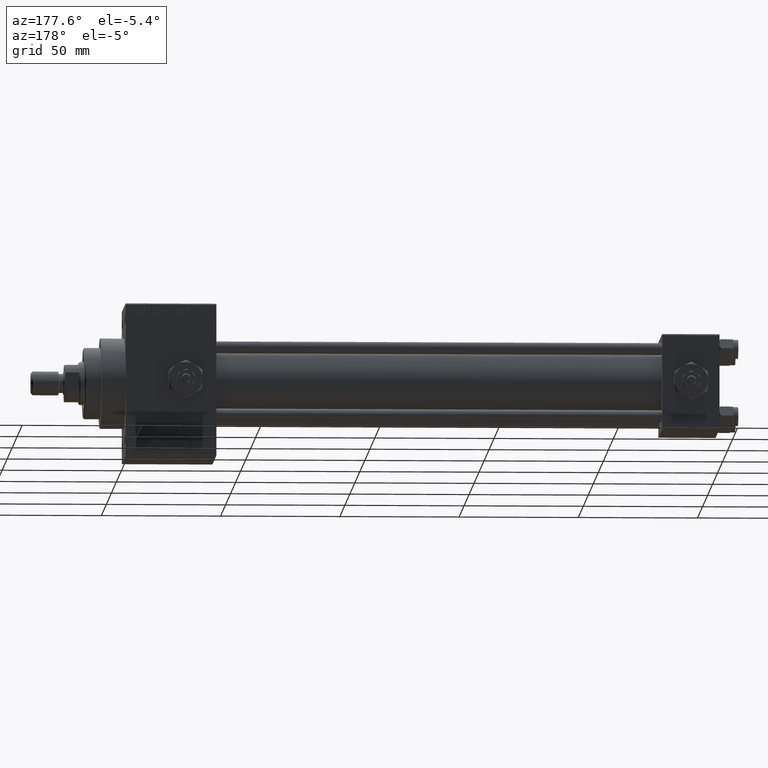
[diagram: clean part render]
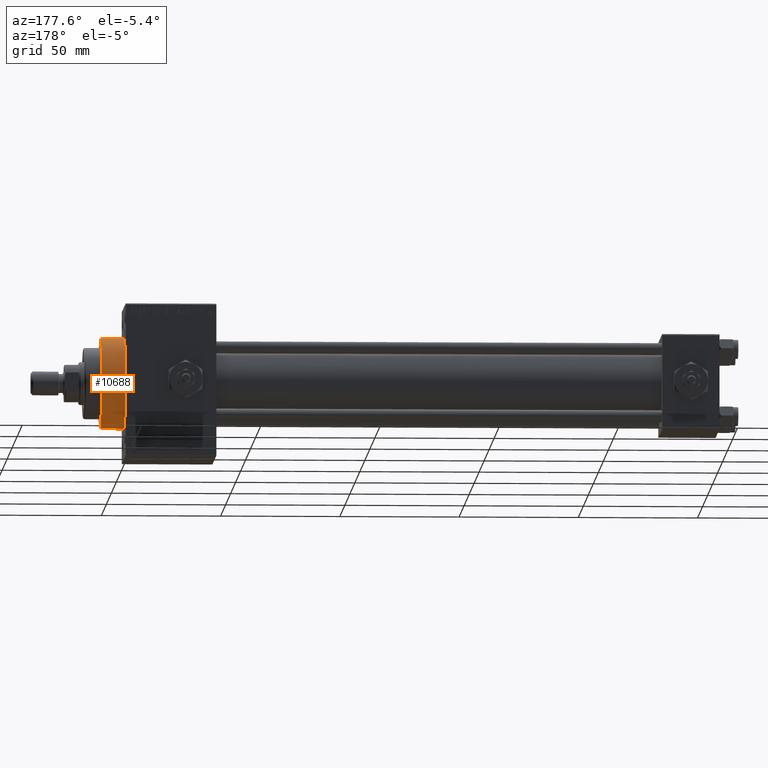
[diagram: same view with one face highlighted and labeled with its STEP entity id]
A machine part, auxiliary view. The second image highlights one B-rep face of the part: STEP entity #10688.
In plain terms, the highlighted cylindrical surface (partial cylindrical patch) has radius 19 mm, axis along (-1, -0, -0).
Its self-contained STEP definition (entity closure, byte-faithful):
#668 = CARTESIAN_POINT ( 'NONE',  ( 259.0000000000000000, 2.326828918379970970E-15, -19.00000000000000000 ) ) ;
#2359 = LINE ( 'NONE', #3111, #28497 ) ;
#3111 = CARTESIAN_POINT ( 'NONE',  ( 259.0000000000000000, 0.000000000000000000, 19.00000000000000000 ) ) ;
#5300 = VERTEX_POINT ( 'NONE', #47531 ) ;
#5656 = ORIENTED_EDGE ( 'NONE', *, *, #6863, .T. ) ;
#5733 = ORIENTED_EDGE ( 'NONE', *, *, #12214, .F. ) ;
#6127 = CARTESIAN_POINT ( 'NONE',  ( 249.0000000000000000, 2.326828918379970970E-15, -19.00000000000000000 ) ) ;
#6863 = EDGE_CURVE ( 'NONE', #44460, #5300, #15697, .T. ) ;
#7339 = DIRECTION ( 'NONE',  ( 1.000000000000000000, 0.000000000000000000, 0.000000000000000000 ) ) ;
#7627 = DIRECTION ( 'NONE',  ( 0.000000000000000000, 0.000000000000000000, -1.000000000000000000 ) ) ;
#7715 = AXIS2_PLACEMENT_3D ( 'NONE', #37891, #41631, #7627 ) ;
#10055 = CARTESIAN_POINT ( 'NONE',  ( 259.0000000000000000, 2.326828918379970970E-15, -19.00000000000000000 ) ) ;
#10688 = ADVANCED_FACE ( 'NONE', ( #15267 ), #42507, .T. ) ;
#11920 = AXIS2_PLACEMENT_3D ( 'NONE', #49095, #7339, #37598 ) ;
#12214 = EDGE_CURVE ( 'NONE', #23664, #5300, #2359, .T. ) ;
#15267 = FACE_OUTER_BOUND ( 'NONE', #21110, .T. ) ;
#15697 = CIRCLE ( 'NONE', #7715, 19.00000000000000000 ) ;
#19661 = LINE ( 'NONE', #668, #24026 ) ;
#21110 = EDGE_LOOP ( 'NONE', ( #36846, #21336, #5656, #5733 ) ) ;
#21269 = CARTESIAN_POINT ( 'NONE',  ( 259.0000000000000000, 0.000000000000000000, 19.00000000000000000 ) ) ;
#21336 = ORIENTED_EDGE ( 'NONE', *, *, #21755, .T. ) ;
#21755 = EDGE_CURVE ( 'NONE', #26362, #44460, #19661, .T. ) ;
#22375 = DIRECTION ( 'NONE',  ( -1.000000000000000000, -0.000000000000000000, -0.000000000000000000 ) ) ;
#22993 = AXIS2_PLACEMENT_3D ( 'NONE', #30533, #23521, #23275 ) ;
#23275 = DIRECTION ( 'NONE',  ( 0.000000000000000000, 0.000000000000000000, 1.000000000000000000 ) ) ;
#23521 = DIRECTION ( 'NONE',  ( -1.000000000000000000, -0.000000000000000000, -0.000000000000000000 ) ) ;
#23664 = VERTEX_POINT ( 'NONE', #21269 ) ;
#24026 = VECTOR ( 'NONE', #42655, 1000.000000000000000 ) ;
#26362 = VERTEX_POINT ( 'NONE', #10055 ) ;
#28497 = VECTOR ( 'NONE', #22375, 1000.000000000000000 ) ;
#30533 = CARTESIAN_POINT ( 'NONE',  ( 259.0000000000000000, 0.000000000000000000, 0.000000000000000000 ) ) ;
#35082 = CIRCLE ( 'NONE', #11920, 19.00000000000000000 ) ;
#36846 = ORIENTED_EDGE ( 'NONE', *, *, #47600, .F. ) ;
#37598 = DIRECTION ( 'NONE',  ( 0.000000000000000000, 0.000000000000000000, -1.000000000000000000 ) ) ;
#37891 = CARTESIAN_POINT ( 'NONE',  ( 249.0000000000000000, 0.000000000000000000, 0.000000000000000000 ) ) ;
#41631 = DIRECTION ( 'NONE',  ( 1.000000000000000000, 0.000000000000000000, 0.000000000000000000 ) ) ;
#42507 = CYLINDRICAL_SURFACE ( 'NONE', #22993, 19.00000000000000000 ) ;
#42655 = DIRECTION ( 'NONE',  ( -1.000000000000000000, -0.000000000000000000, -0.000000000000000000 ) ) ;
#44460 = VERTEX_POINT ( 'NONE', #6127 ) ;
#47531 = CARTESIAN_POINT ( 'NONE',  ( 249.0000000000000000, 0.000000000000000000, 19.00000000000000000 ) ) ;
#47600 = EDGE_CURVE ( 'NONE', #26362, #23664, #35082, .T. ) ;
#49095 = CARTESIAN_POINT ( 'NONE',  ( 259.0000000000000000, 0.000000000000000000, 0.000000000000000000 ) ) ;